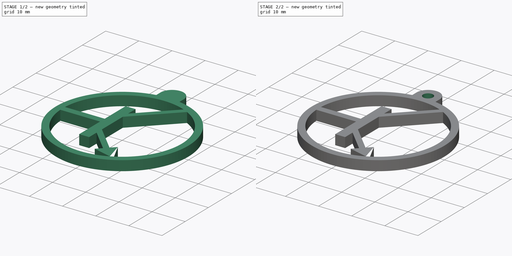
[diagram: build sequence overview — one tinted view per stage of 2, left to right]
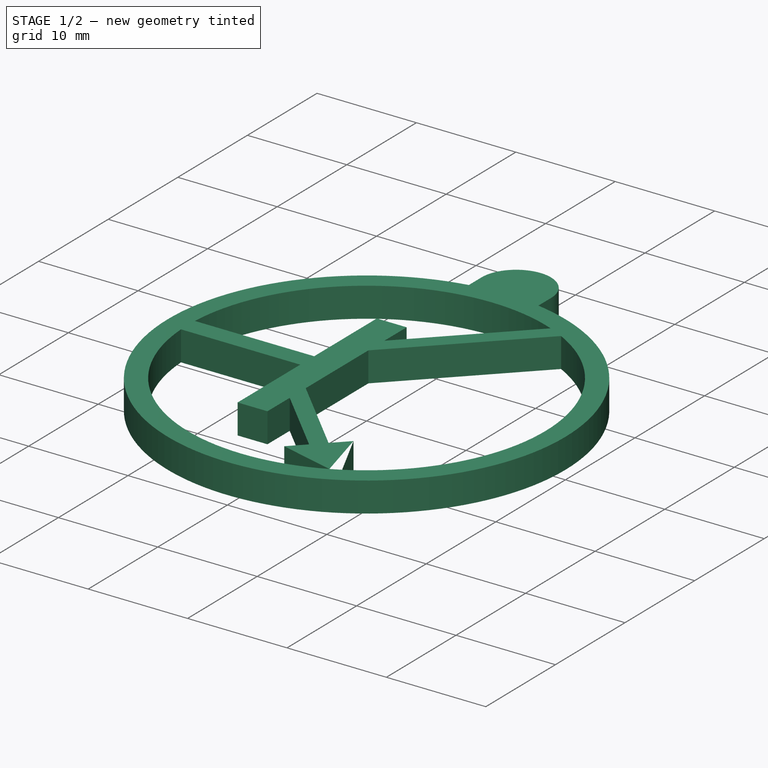
[diagram: stage 1 of 2 — iso view after this stage's code; geometry added in this stage tinted green]
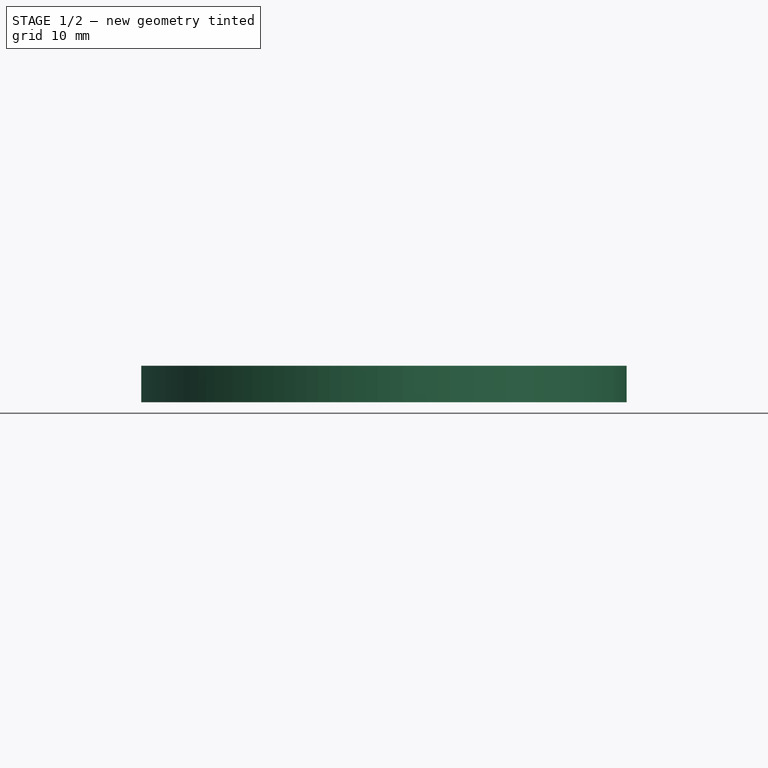
[diagram: stage 1 of 2 — front view after this stage's code; geometry added in this stage tinted green]
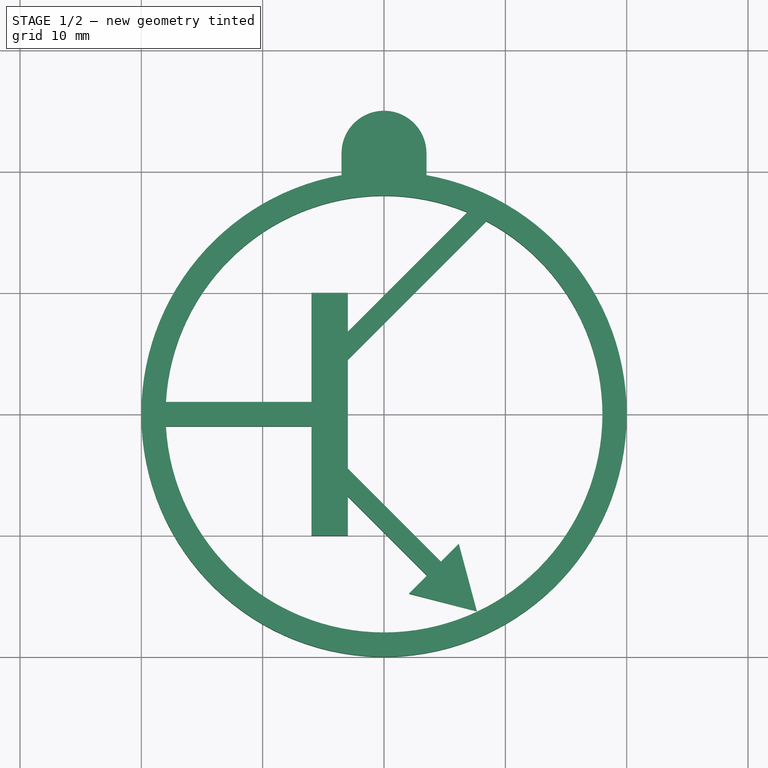
[diagram: stage 1 of 2 — top view after this stage's code; geometry added in this stage tinted green]
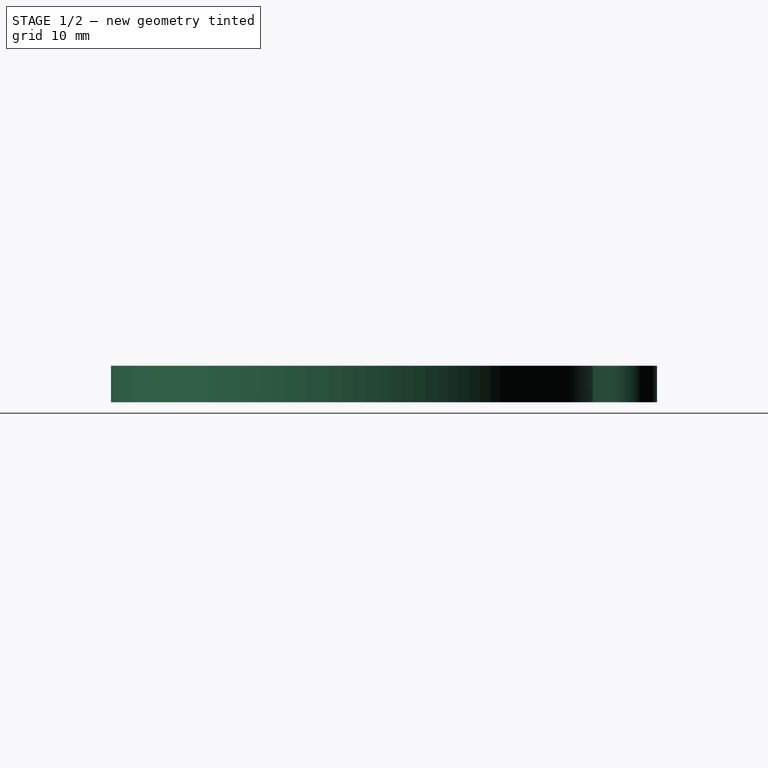
[diagram: stage 1 of 2 — right view after this stage's code; geometry added in this stage tinted green]
FCSTD DOCUMENT  (FreeCAD 0.16R)
Label: NPN-key-chain
License: CreativeCommons Attribution-ShareAlike
LicenseURL: http://creativecommons.org/licenses/by-sa/4.0/
objects: Part::Feature×2, Sketcher::SketchObject×2, App::DocumentObjectGroup×1, PartDesign::Pad×1, PartDesign::Pocket×1
note: 8 computed .brp shape members not serialized (recipe doc carries the construction recipe); baked Part::Feature solids carry a one-line shape summary decoded from their .brp

FEATURE [Part::Feature] Sweep  label="key-ring-model-1"
  Placement = pos=(-1.2,30.2546,1.6391) rot=(0.333333,0.881918,0.333333;1.69612rad)
  shape: bbox 3.31 x 27.02 x 26.33 mm, 4 faces (baked)
FEATURE [Part::Feature] Cut  label="key-model-1"
  Placement = pos=(-5.46976,36.5266,0) rot=(0,0,1;0.517888rad)
  shape: bbox 49.82 x 36.6 x 2.3 mm, 44 faces (baked)
FEATURE [App::DocumentObjectGroup] Group  label="Assembly"
  Group = -> [Sweep,Cut]
FEATURE [Sketcher::SketchObject] Sketch005  label="NPN-shape"
  sketch-geometry (27):
    g0: Circle [constr] CenterX=0 CenterY=21.5 CenterZ=0 NormalX=0 NormalY=0 NormalZ=1 Radius=1.5
    g1: LineSegment [constr] StartX=-3.5 StartY=21.5 StartZ=0 EndX=3.5 EndY=21.5 EndZ=0
    g2: ArcOfCircle CenterX=0 CenterY=21.5 CenterZ=0 NormalX=0 NormalY=0 NormalZ=1 Radius=3.5 StartAngle=0 EndAngle=3.14159
    g3: LineSegment StartX=-3.5 StartY=21.5 StartZ=0 EndX=-3.5 EndY=19.6914 EndZ=0
    g4: LineSegment [constr] StartX=-3.5 StartY=19.6914 StartZ=0 EndX=3.5 EndY=19.6914 EndZ=0
    g5: LineSegment StartX=3.5 StartY=19.6914 StartZ=0 EndX=3.5 EndY=21.5 EndZ=0
    g6: ArcOfCircle CenterX=0 CenterY=0 CenterZ=0 NormalX=0 NormalY=0 NormalZ=1 Radius=20 StartAngle=1.7467 EndAngle=7.67808
    g7: ArcOfCircle CenterX=0 CenterY=0 CenterZ=0 NormalX=0 NormalY=0 NormalZ=1 Radius=18 StartAngle=3.19718 EndAngle=7.36651
    g8: LineSegment StartX=-17.9722 StartY=1 StartZ=0 EndX=-5.9722 EndY=1 EndZ=0
    g9: LineSegment StartX=-5.9722 StartY=1 StartZ=0 EndX=-5.9722 EndY=10 EndZ=0
    g10: LineSegment StartX=-5.9722 StartY=10 StartZ=0 EndX=-2.9722 EndY=10 EndZ=0
    g11: LineSegment StartX=-2.9722 StartY=10 StartZ=0 EndX=-2.9722 EndY=6.8 EndZ=0
    g12: LineSegment StartX=-2.9722 StartY=6.8 StartZ=0 EndX=6.8666 EndY=16.6388 EndZ=0
    g13: LineSegment StartX=-17.9722 StartY=-1 StartZ=0 EndX=-5.9722 EndY=-1 EndZ=0
    g14: LineSegment StartX=-5.9722 StartY=-1 StartZ=0 EndX=-5.9722 EndY=-10 EndZ=0
    g15: LineSegment StartX=-5.9722 StartY=-10 StartZ=0 EndX=-2.9722 EndY=-10 EndZ=0
    g16: LineSegment StartX=-2.9722 StartY=-10 StartZ=0 EndX=-2.9722 EndY=-6.8 EndZ=0
    g17: LineSegment StartX=8.43113 StartY=15.9033 StartZ=0 EndX=-2.9722 EndY=4.5 EndZ=0
    g18: LineSegment StartX=-2.9722 StartY=4.5 StartZ=0 EndX=-2.9722 EndY=-4.5 EndZ=0
    g19: ArcOfCircle CenterX=0 CenterY=0 CenterZ=0 NormalX=0 NormalY=0 NormalZ=1 Radius=18 StartAngle=1.1794 EndAngle=3.08601
    g20: LineSegment StartX=-2.9722 StartY=-4.5 StartZ=0 EndX=4.69044 EndY=-12.1626 EndZ=0
    g21: LineSegment StartX=4.69044 StartY=-12.1626 StartZ=0 EndX=6.16448 EndY=-10.6886 EndZ=0
    g22: LineSegment StartX=6.16448 StartY=-10.6886 StartZ=0 EndX=7.66448 EndY=-16.2867 EndZ=0
    g23: LineSegment StartX=7.66448 StartY=-16.2867 StartZ=0 EndX=2.0664 EndY=-14.7867 EndZ=0
    g24: LineSegment StartX=2.0664 StartY=-14.7867 StartZ=0 EndX=3.54044 EndY=-13.3126 EndZ=0
    g25: LineSegment StartX=3.54044 StartY=-13.3126 StartZ=0 EndX=-2.9722 EndY=-6.8 EndZ=0
    g26: LineSegment [constr] StartX=2.0664 StartY=-14.7867 StartZ=0 EndX=6.16448 EndY=-10.6886 EndZ=0
  constraints (82):
    c: Radius(g0) = 1.5
    c: Horizontal(g1)
    c: Symmetric(g1,g1,g-2)
    c: Coincident(g2,g0)
    c: PointOnObject(g0,g-2)
    c: PointOnObject(g0,g1)
    c: Coincident(g2,g1)
    c: Coincident(g2,g1)
    c: Radius(g2) = 3.5
    c: DistanceY(g-1,g0) = 21.5
    c: Vertical(g3)
    c: Coincident(g3,g4)
    c: Horizontal(g4)
    c: Coincident(g4,g5)
    c: Vertical(g5)
    c: Coincident(g3,g1)
    c: Coincident(g5,g1)
    c: Coincident(g6,g-1)
    c: Radius(g6) = 20
    c: PointOnObject(g3,g6)
    c: PointOnObject(g6,g4)
    c: PointOnObject(g6,g4)
    c: Radius(g7) = 18
    c: Horizontal(g8)
    c: Coincident(g8,g9)
    c: Vertical(g9)
    c: Horizontal(g10)
    c: Coincident(g10,g11)
    c: Vertical(g11)
    c: Coincident(g11,g12)
    c: Horizontal(g13)
    c: Coincident(g13,g14)
    c: Vertical(g14)
    c: Coincident(g14,g15)
    c: Horizontal(g15)
    c: Coincident(g15,g16)
    c: Vertical(g16)
    c: Coincident(g7,g-1)
    c: Symmetric(g9,g14,g-1)
    c: Symmetric(g8,g13,g-1)
    c: Angle(g12,g11) = 0.785398
    c: Equal(g15,g10)
    c: Coincident(g17,g18)
    c: Vertical(g18)
    c: Parallel(g12,g17)
    c: Coincident(g7,g13)
    c: Coincident(g19,g8)
    c: Equal(g7,g19)
    c: Coincident(g7,g17)
    c: Coincident(g19,g12)
    c: Coincident(g7,g19)
    c: DistanceX(g13,g18) = 3
    c: Coincident(g18,g20)
    c: Coincident(g20,g21)
    c: Coincident(g21,g22)
    c: Coincident(g22,g23)
    c: Coincident(g23,g24)
    c: Coincident(g24,g25)
    c: PointOnObject(g25,g16)
    c: Coincident(g25,g16)
    c: Angle(g16,g25) = 0.785398
    c: Parallel(g20,g25)
    c: Coincident(g23,g26)
    c: Coincident(g21,g26)
    c: Equal(g26,g23)
    c: Equal(g23,g22)
    c: Equal(g24,g21)
    c: Equal(g10,g15)
    c: DistanceX(g14,g15) = 3
    c: Equal(g11,g16)
    c: PointOnObject(g20,g26)
    c: Symmetric(g17,g18,g-1)
    c: DistanceY(g7,g8) = 2
    c: PointOnObject(g24,g26)
    c: Angle(g21,g20) = 1.5708
    c: PointOnObject(g22,g7)
    c: DistanceX(g22,g22) = 1.5
    c: DistanceX(g13,g13) = 12
    c: DistanceY(g18,g18) = 9
    c: DistanceY(g9,g9) = 9
    c: DistanceY(g16,g18) = 2.3
    c: Coincident(g10,g9)
FEATURE [PartDesign::Pad] Pad  label="NPN-shape-pad"
  Length = 3
  Length2 = 100
  Sketch = -> Sketch005
  Type = 0
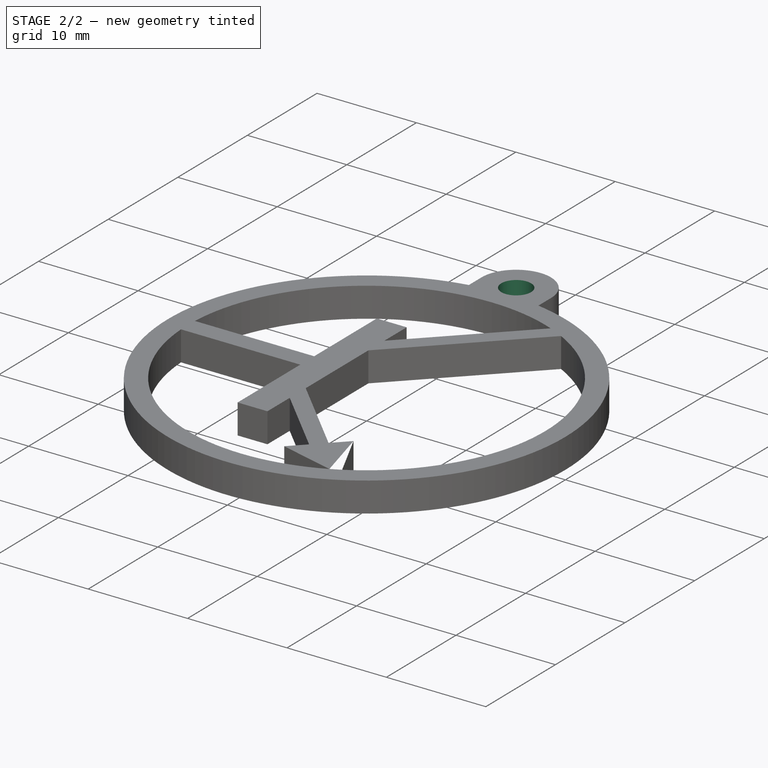
[diagram: stage 2 of 2 — iso view after this stage's code; geometry added in this stage tinted green]
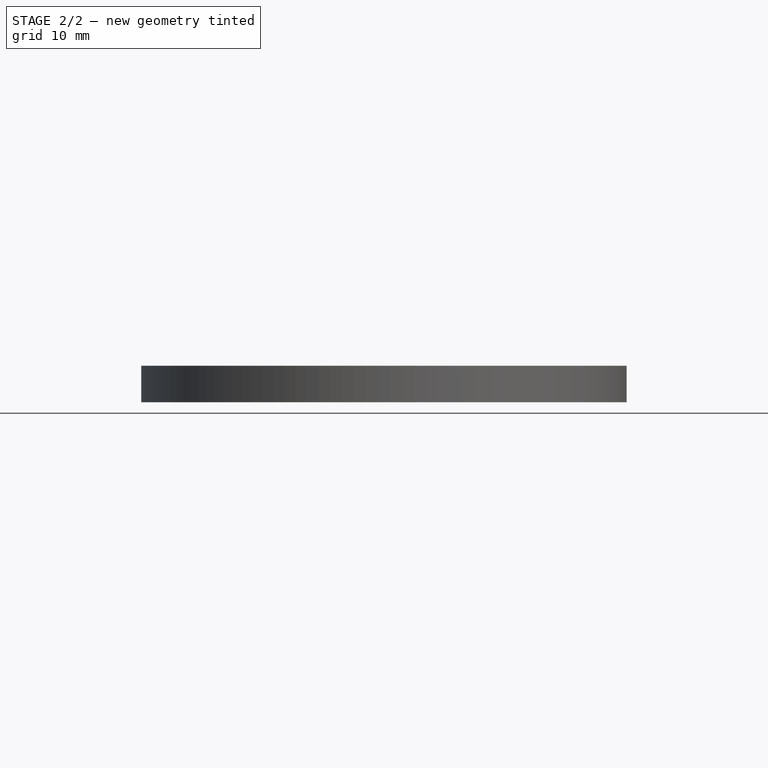
[diagram: stage 2 of 2 — front view after this stage's code; geometry added in this stage tinted green]
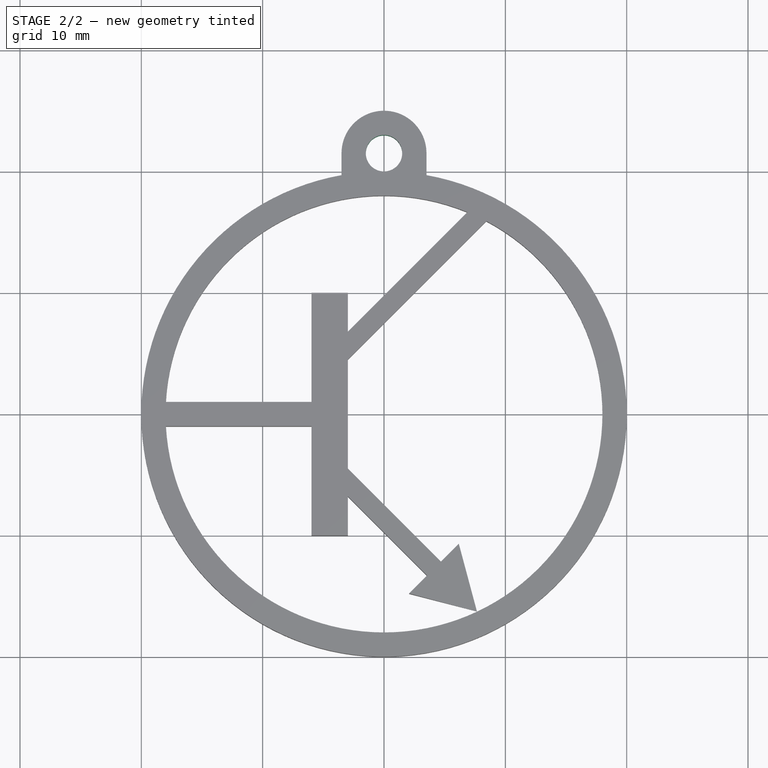
[diagram: stage 2 of 2 — top view after this stage's code; geometry added in this stage tinted green]
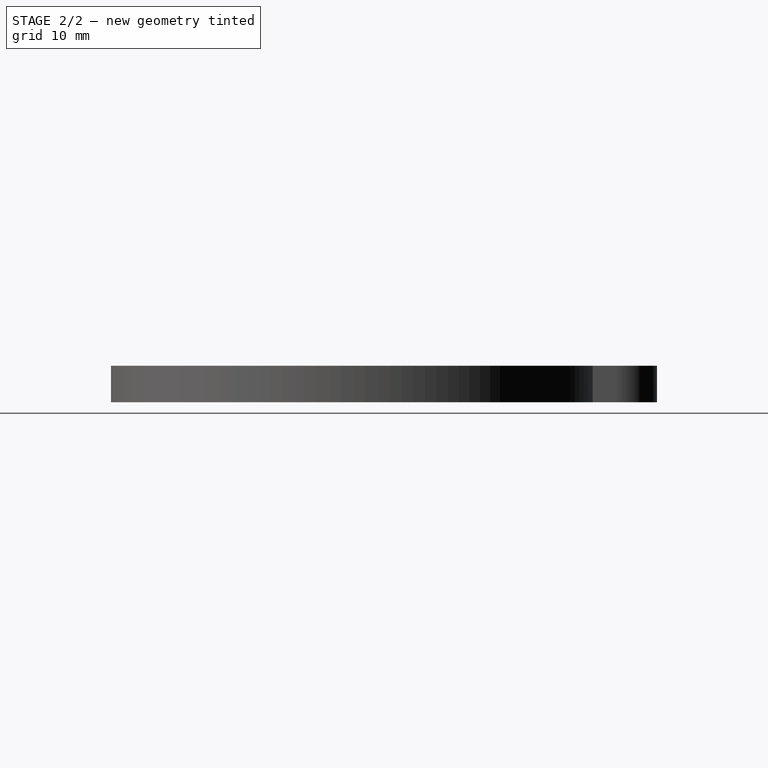
[diagram: stage 2 of 2 — right view after this stage's code; geometry added in this stage tinted green]
FEATURE [Sketcher::SketchObject] Sketch  label="hole"
  Placement = pos=(0,0,3) rot=(0,0,1;0rad)
  Support = -> Pad [Face26]
  sketch-geometry (1):
    g0: Circle CenterX=0 CenterY=21.5 CenterZ=0 NormalX=0 NormalY=0 NormalZ=1 Radius=1.5
  constraints (3):
    c: Radius(g0) = 1.5
    c: PointOnObject(g0,g-2)
    c: DistanceY(g-1,g0) = 21.5
FEATURE [PartDesign::Pocket] Pocket  label="NPN-shape-pad-drilled"
  Length = 5
  Sketch = -> Sketch
  Type = 1
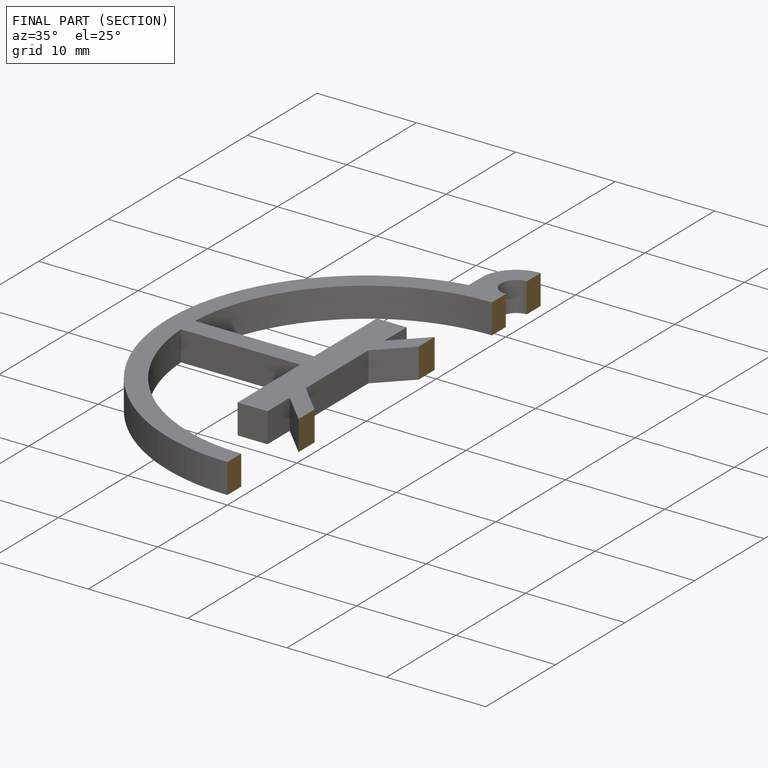
[diagram: finished part — half-section view (interior)]
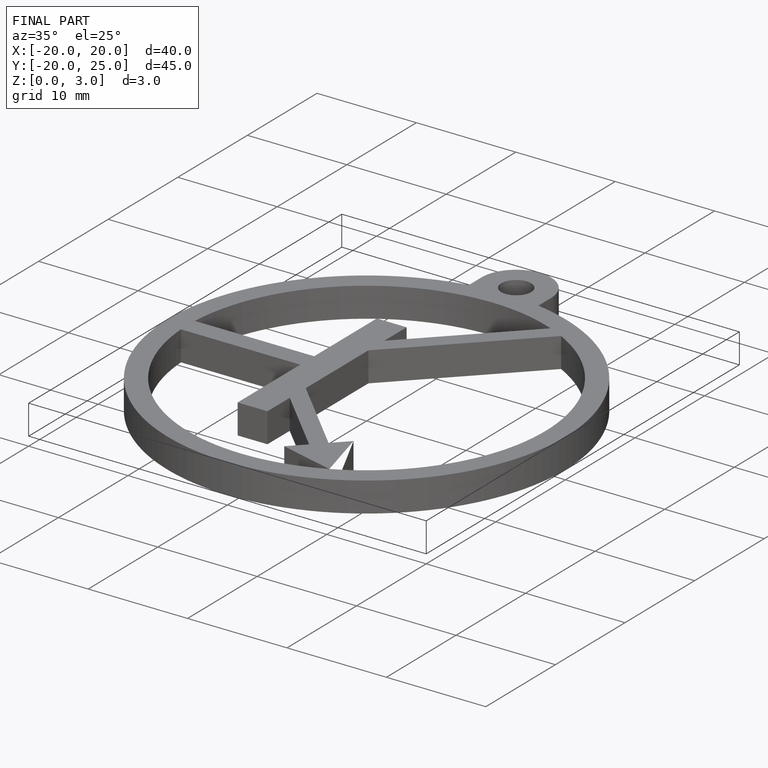
[diagram: finished part — iso view with bounding-box wireframe]
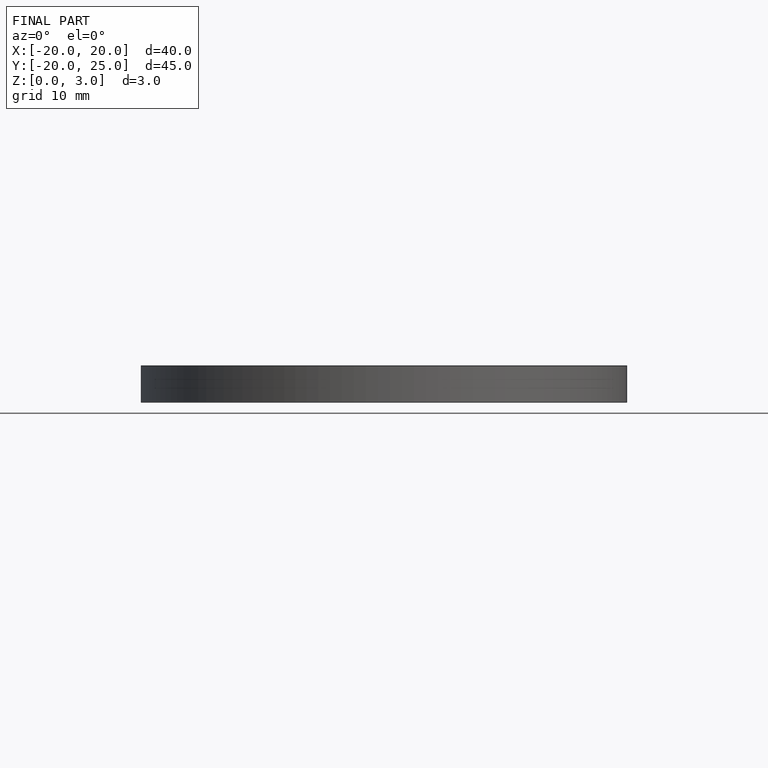
[diagram: finished part — front view with bounding-box wireframe]
